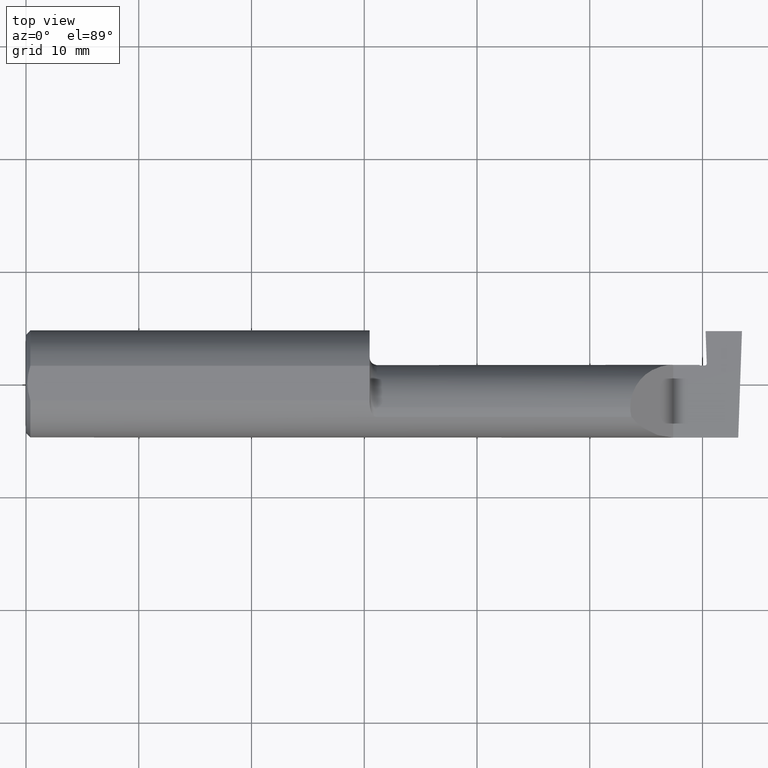
[diagram: clean part render]
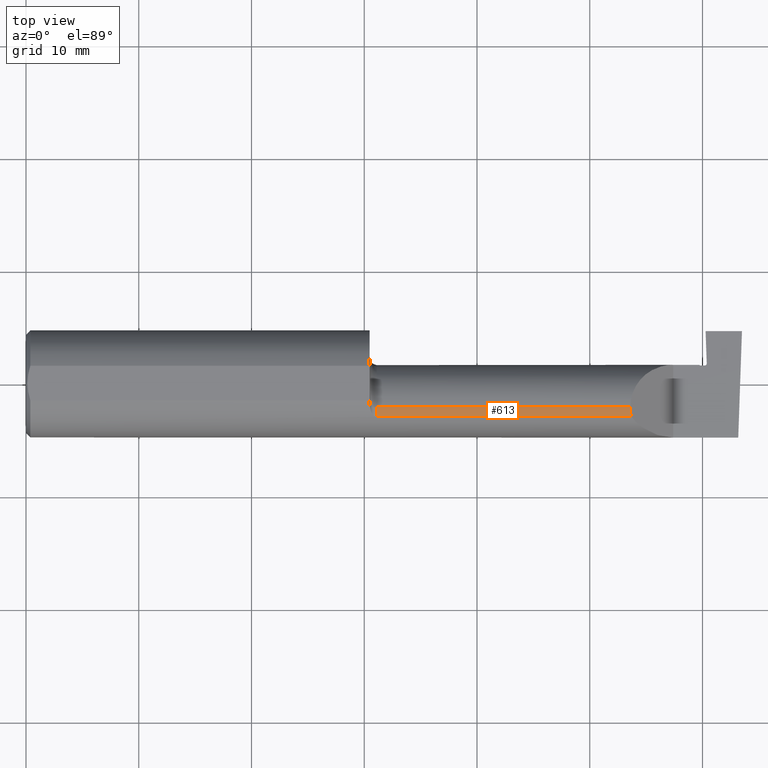
[diagram: same view with one face highlighted and labeled with its STEP entity id]
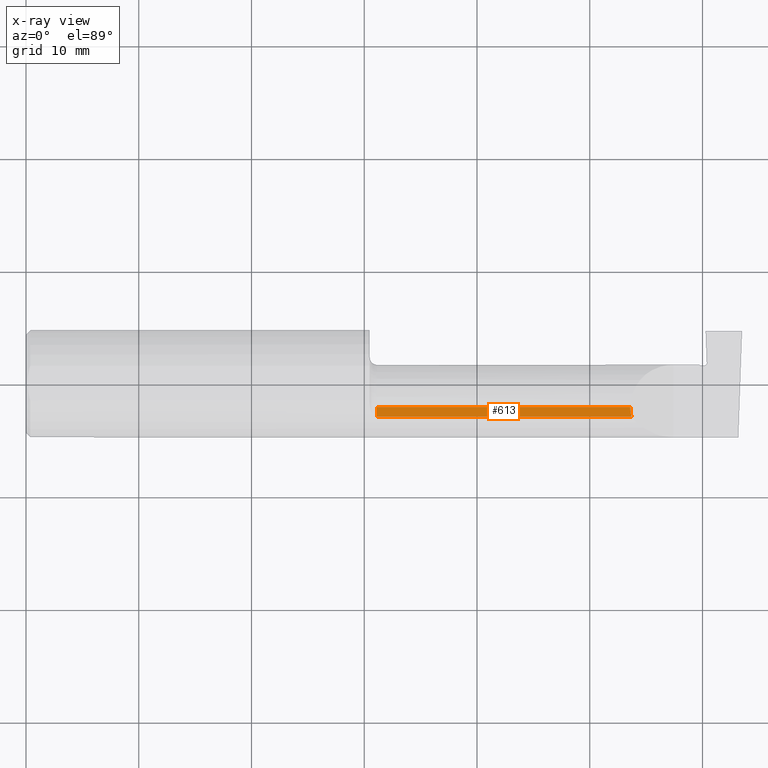
[diagram: x-ray of the same camera — body ghosted, the highlighted face saturated]
A machine part, top view. The second image highlights one B-rep face of the part: STEP entity #613.
The next image is the same camera in x-ray: the body ghosted, the highlighted face saturated — about 0% of this face is hidden behind the body in this view.
In plain terms, the highlighted cylindrical surface (partial cylindrical patch) has radius 3.81 mm, axis along (-1, -0, -0).
Its self-contained STEP definition (entity closure, byte-faithful):
#40 = LINE ( 'NONE', #114, #999 ) ;
#54 = CARTESIAN_POINT ( 'NONE',  ( 2.110000000000000764, -0.08334999999999996578, 0.1499999999999999667 ) ) ;
#73 = VECTOR ( 'NONE', #918, 39.37007874015748143 ) ;
#96 = DIRECTION ( 'NONE',  ( -1.000000000000000000, -0.000000000000000000, -0.000000000000000000 ) ) ;
#98 = ORIENTED_EDGE ( 'NONE', *, *, #354, .T. ) ;
#114 = CARTESIAN_POINT ( 'NONE',  ( 1.796499999999999986, -0.1172600179964007477, 0.1461167706989302817 ) ) ;
#119 = DIRECTION ( 'NONE',  ( -1.000000000000000000, -0.000000000000000000, -0.000000000000000000 ) ) ;
#134 = CARTESIAN_POINT ( 'NONE',  ( 1.225000000000000089, -0.1172600179964007477, 0.1461167706989302539 ) ) ;
#215 = CARTESIAN_POINT ( 'NONE',  ( 2.113883229301070088, -0.1172600179964004286, 0.1461167706989304482 ) ) ;
#271 = ORIENTED_EDGE ( 'NONE', *, *, #322, .F. ) ;
#291 = CARTESIAN_POINT ( 'NONE',  ( 2.110000000000000320, -0.09477667630339407789, 0.1499999999999999667 ) ) ;
#322 = EDGE_CURVE ( 'NONE', #349, #808, #491, .T. ) ;
#333 = CYLINDRICAL_SURFACE ( 'NONE', #849, 0.1499999999999999667 ) ;
#340 = EDGE_CURVE ( 'NONE', #349, #881, #40, .T. ) ;
#349 = VERTEX_POINT ( 'NONE', #134 ) ;
#354 = EDGE_CURVE ( 'NONE', #881, #1034, #600, .T. ) ;
#365 = DIRECTION ( 'NONE',  ( 1.000000000000000000, 0.000000000000000000, 0.000000000000000000 ) ) ;
#372 = CARTESIAN_POINT ( 'NONE',  ( 1.225000000000000089, -0.08334999999999996578, 0.1499999999999999667 ) ) ;
#401 = CARTESIAN_POINT ( 'NONE',  ( 1.199999999999999956, -0.08334999999999996578, 0.000000000000000000 ) ) ;
#445 = CARTESIAN_POINT ( 'NONE',  ( 1.199999999999999956, -0.08334999999999996578, 0.1499999999999999667 ) ) ;
#491 = CIRCLE ( 'NONE', #576, 0.1499999999999999667 ) ;
#499 = EDGE_LOOP ( 'NONE', ( #98, #920, #271, #553 ) ) ;
#505 = FACE_OUTER_BOUND ( 'NONE', #499, .T. ) ;
#524 = CARTESIAN_POINT ( 'NONE',  ( 2.110000000000000764, -0.08334999999999996578, 0.1499999999999999667 ) ) ;
#532 = DIRECTION ( 'NONE',  ( 0.000000000000000000, 0.000000000000000000, 1.000000000000000000 ) ) ;
#553 = ORIENTED_EDGE ( 'NONE', *, *, #340, .T. ) ;
#576 = AXIS2_PLACEMENT_3D ( 'NONE', #944, #119, #532 ) ;
#600 =( BOUNDED_CURVE ( )  B_SPLINE_CURVE ( 3, ( #215, #1007, #291, #54 ),
 .UNSPECIFIED., .F., .F. ) 
 B_SPLINE_CURVE_WITH_KNOTS ( ( 4, 4 ),
 ( 6.055147272130144032, 6.283185307179586232 ),
 .UNSPECIFIED. ) 
 CURVE ( )  GEOMETRIC_REPRESENTATION_ITEM ( )  RATIONAL_B_SPLINE_CURVE ( ( 1.000000000000000000, 0.9956712472009929815, 0.9956712472009929815, 1.000000000000000000 ) ) 
 REPRESENTATION_ITEM ( '' )  );
#613 = ADVANCED_FACE ( 'NONE', ( #505 ), #333, .T. ) ;
#725 = CARTESIAN_POINT ( 'NONE',  ( 2.113883229301070088, -0.1172600179964004286, 0.1461167706989304482 ) ) ;
#732 = DIRECTION ( 'NONE',  ( 0.000000000000000000, 0.000000000000000000, 1.000000000000000000 ) ) ;
#736 = EDGE_CURVE ( 'NONE', #1034, #808, #1001, .T. ) ;
#808 = VERTEX_POINT ( 'NONE', #372 ) ;
#849 = AXIS2_PLACEMENT_3D ( 'NONE', #401, #96, #732 ) ;
#881 = VERTEX_POINT ( 'NONE', #725 ) ;
#918 = DIRECTION ( 'NONE',  ( -1.000000000000000000, -0.000000000000000000, -0.000000000000000000 ) ) ;
#920 = ORIENTED_EDGE ( 'NONE', *, *, #736, .T. ) ;
#944 = CARTESIAN_POINT ( 'NONE',  ( 1.225000000000000089, -0.08334999999999996578, 0.000000000000000000 ) ) ;
#999 = VECTOR ( 'NONE', #365, 39.37007874015748143 ) ;
#1001 = LINE ( 'NONE', #445, #73 ) ;
#1007 = CARTESIAN_POINT ( 'NONE',  ( 2.111300037307155986, -0.1061291577212407494, 0.1486999626928445783 ) ) ;
#1034 = VERTEX_POINT ( 'NONE', #524 ) ;